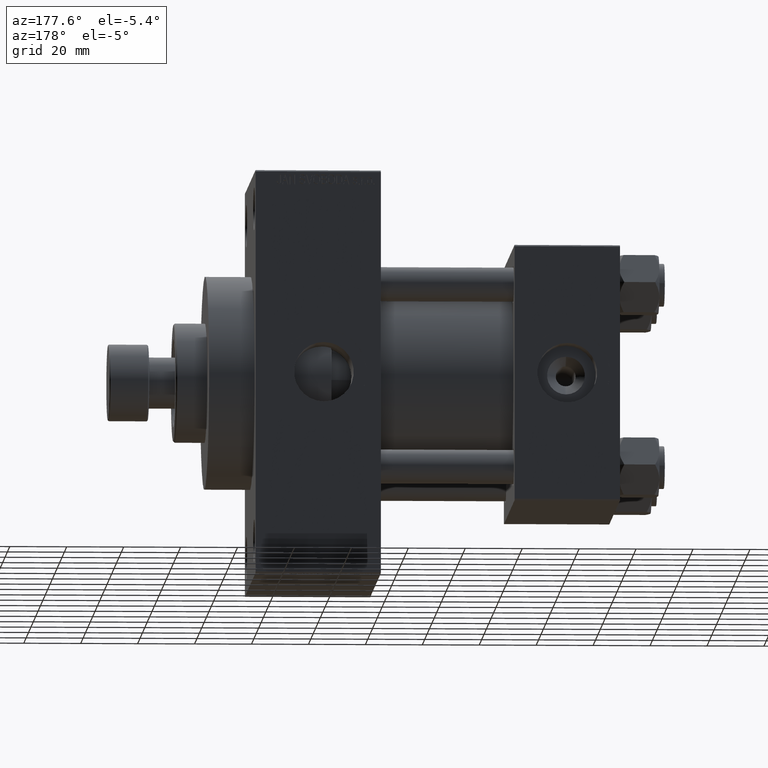
[diagram: clean part render]
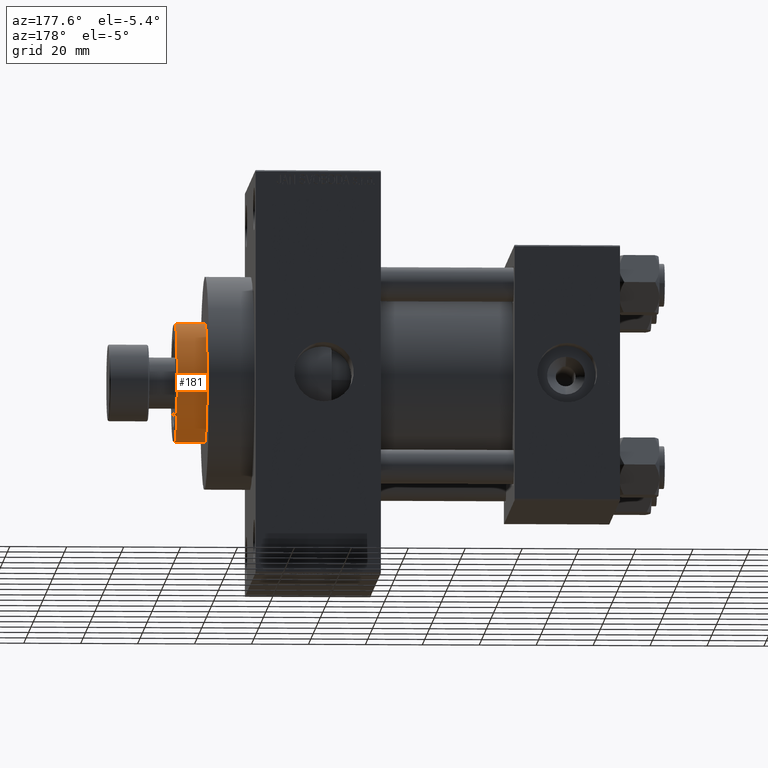
[diagram: same view with one face highlighted and labeled with its STEP entity id]
A machine part, auxiliary view. The second image highlights one B-rep face of the part: STEP entity #181.
In plain terms, the highlighted cylindrical surface (partial cylindrical patch) has radius 21 mm, axis along (-1, 0, 0).
Its self-contained STEP definition (entity closure, byte-faithful):
#181 = ADVANCED_FACE ( 'NONE', ( #16826 ), #24074, .T. ) ;
#521 = DIRECTION ( 'NONE',  ( -1.000000000000000000, 0.000000000000000000, 0.000000000000000000 ) ) ;
#1898 = CARTESIAN_POINT ( 'NONE',  ( 0.000000000000000000, 0.000000000000000000, 54.26000000000000512 ) ) ;
#2276 = EDGE_CURVE ( 'NONE', #25408, #6585, #20547, .T. ) ;
#3229 = DIRECTION ( 'NONE',  ( 1.000000000000000000, 0.000000000000000000, 0.000000000000000000 ) ) ;
#6482 = CIRCLE ( 'NONE', #21877, 21.00000000000000000 ) ;
#6585 = VERTEX_POINT ( 'NONE', #27168 ) ;
#6911 = AXIS2_PLACEMENT_3D ( 'NONE', #35778, #47570, #3229 ) ;
#7976 = VECTOR ( 'NONE', #32061, 1000.000000000000000 ) ;
#8574 = EDGE_CURVE ( 'NONE', #25408, #15846, #43072, .T. ) ;
#8996 = VECTOR ( 'NONE', #30930, 1000.000000000000000 ) ;
#11774 = ORIENTED_EDGE ( 'NONE', *, *, #8574, .T. ) ;
#15846 = VERTEX_POINT ( 'NONE', #31682 ) ;
#16826 = FACE_OUTER_BOUND ( 'NONE', #17390, .T. ) ;
#17390 = EDGE_LOOP ( 'NONE', ( #44270, #11774, #44998, #22203 ) ) ;
#17598 = CARTESIAN_POINT ( 'NONE',  ( 0.000000000000000000, 0.000000000000000000, 43.25999999999999801 ) ) ;
#20547 = LINE ( 'NONE', #46127, #8996 ) ;
#20982 = CARTESIAN_POINT ( 'NONE',  ( -21.00000000000000000, 0.000000000000000000, 54.26000000000000512 ) ) ;
#21877 = AXIS2_PLACEMENT_3D ( 'NONE', #17598, #24839, #46792 ) ;
#22203 = ORIENTED_EDGE ( 'NONE', *, *, #36172, .T. ) ;
#22808 = VERTEX_POINT ( 'NONE', #41376 ) ;
#24074 = CYLINDRICAL_SURFACE ( 'NONE', #36632, 21.00000000000000000 ) ;
#24839 = DIRECTION ( 'NONE',  ( 0.000000000000000000, 0.000000000000000000, 1.000000000000000000 ) ) ;
#25408 = VERTEX_POINT ( 'NONE', #34588 ) ;
#27168 = CARTESIAN_POINT ( 'NONE',  ( 21.00000000000000000, 2.571758278209441661E-15, 43.25999999999999801 ) ) ;
#30930 = DIRECTION ( 'NONE',  ( -0.000000000000000000, -0.000000000000000000, -1.000000000000000000 ) ) ;
#31682 = CARTESIAN_POINT ( 'NONE',  ( -21.00000000000000000, 0.000000000000000000, 53.76000000000001933 ) ) ;
#31914 = EDGE_CURVE ( 'NONE', #15846, #22808, #40244, .T. ) ;
#32061 = DIRECTION ( 'NONE',  ( -0.000000000000000000, -0.000000000000000000, -1.000000000000000000 ) ) ;
#34588 = CARTESIAN_POINT ( 'NONE',  ( 21.00000000000000000, 2.571758278209441661E-15, 53.76000000000001933 ) ) ;
#35778 = CARTESIAN_POINT ( 'NONE',  ( 0.000000000000000000, 0.000000000000000000, 53.76000000000001933 ) ) ;
#36172 = EDGE_CURVE ( 'NONE', #22808, #6585, #6482, .T. ) ;
#36632 = AXIS2_PLACEMENT_3D ( 'NONE', #1898, #38774, #521 ) ;
#38774 = DIRECTION ( 'NONE',  ( -0.000000000000000000, -0.000000000000000000, -1.000000000000000000 ) ) ;
#40244 = LINE ( 'NONE', #20982, #7976 ) ;
#41376 = CARTESIAN_POINT ( 'NONE',  ( -21.00000000000000000, 0.000000000000000000, 43.25999999999999801 ) ) ;
#43072 = CIRCLE ( 'NONE', #6911, 21.00000000000000000 ) ;
#44270 = ORIENTED_EDGE ( 'NONE', *, *, #2276, .F. ) ;
#44998 = ORIENTED_EDGE ( 'NONE', *, *, #31914, .T. ) ;
#46127 = CARTESIAN_POINT ( 'NONE',  ( 21.00000000000000000, 2.571758278209441661E-15, 54.26000000000000512 ) ) ;
#46792 = DIRECTION ( 'NONE',  ( 1.000000000000000000, 0.000000000000000000, 0.000000000000000000 ) ) ;
#47570 = DIRECTION ( 'NONE',  ( 0.000000000000000000, 0.000000000000000000, -1.000000000000000000 ) ) ;